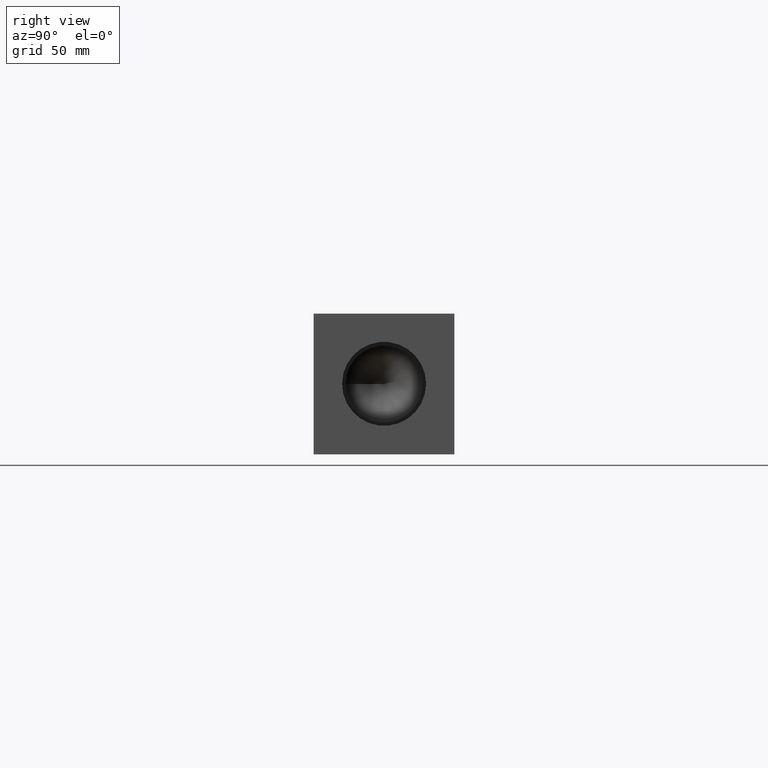
[diagram: clean part render]
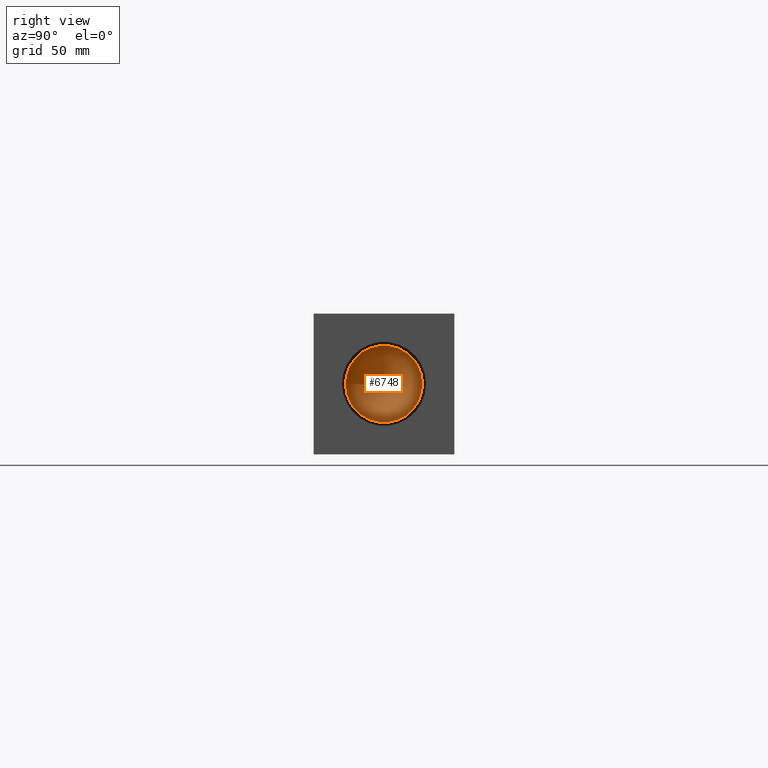
[diagram: same view with one face highlighted and labeled with its STEP entity id]
A machine part, right view. The second image highlights one B-rep face of the part: STEP entity #6748.
In plain terms, the highlighted conical surface has half-angle 60 deg.
Its self-contained STEP definition (entity closure, byte-faithful):
#42=CONICAL_SURFACE('',#7080,13.8938,1.0471975511966);
#96=CIRCLE('',#7081,27.7876);
#97=CIRCLE('',#7082,27.7876);
#720=FACE_OUTER_BOUND('',#1101,.T.);
#1101=EDGE_LOOP('',(#5987,#5988,#5989,#5990));
#1810=LINE('',#11280,#2512);
#2512=VECTOR('',#8410,13.8938);
#3282=VERTEX_POINT('',#11276);
#3283=VERTEX_POINT('',#11277);
#3284=VERTEX_POINT('',#11279);
#4192=EDGE_CURVE('',#3282,#3283,#96,.T.);
#4193=EDGE_CURVE('',#3283,#3284,#1810,.T.);
#4194=EDGE_CURVE('',#3283,#3282,#97,.T.);
#5987=ORIENTED_EDGE('',*,*,#4192,.T.);
#5988=ORIENTED_EDGE('',*,*,#4193,.T.);
#5989=ORIENTED_EDGE('',*,*,#4193,.F.);
#5990=ORIENTED_EDGE('',*,*,#4194,.T.);
#6748=ADVANCED_FACE('',(#720),#42,.F.);
#7080=AXIS2_PLACEMENT_3D('',#11275,#8406,#8407);
#7081=AXIS2_PLACEMENT_3D('',#11278,#8408,#8409);
#7082=AXIS2_PLACEMENT_3D('',#11281,#8411,#8412);
#8406=DIRECTION('center_axis',(1.,0.,0.));
#8407=DIRECTION('ref_axis',(0.,1.,0.));
#8408=DIRECTION('center_axis',(1.,0.,0.));
#8409=DIRECTION('ref_axis',(0.,1.,0.));
#8410=DIRECTION('',(-0.5,0.866025403784439,1.06057523872491E-16));
#8411=DIRECTION('center_axis',(1.,0.,0.));
#8412=DIRECTION('ref_axis',(0.,1.,0.));
#11275=CARTESIAN_POINT('Origin',(478.460490829933,50.8,50.8));
#11276=CARTESIAN_POINT('',(486.48208,78.5876,50.8));
#11277=CARTESIAN_POINT('',(486.48208,23.0124,50.8));
#11278=CARTESIAN_POINT('Origin',(486.48208,50.8,50.8));
#11279=CARTESIAN_POINT('',(470.438901659866,50.8,50.8));
#11280=CARTESIAN_POINT('',(478.460490829933,36.9062,50.8));
#11281=CARTESIAN_POINT('Origin',(486.48208,50.8,50.8));